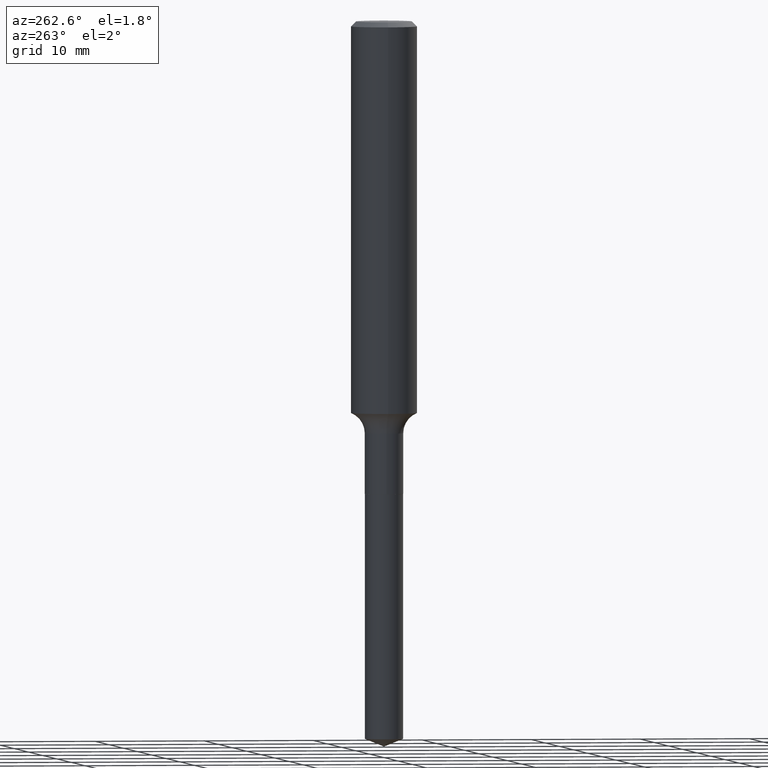
[diagram: clean part render]
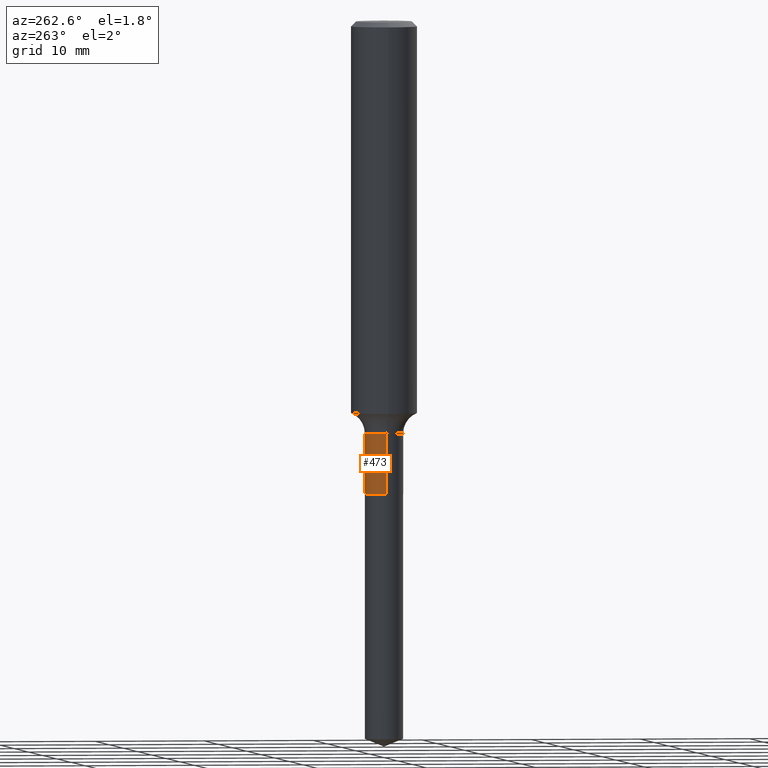
[diagram: same view with one face highlighted and labeled with its STEP entity id]
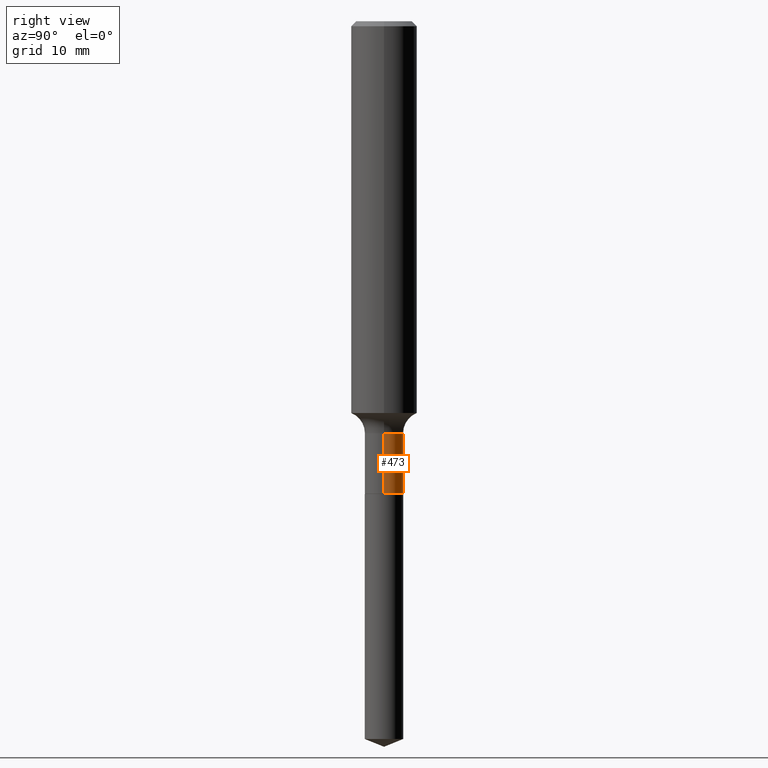
[diagram: same view with one face highlighted and labeled with its STEP entity id]
A machine part, auxiliary view. The second image highlights one B-rep face of the part: STEP entity #473.
A second angle (right view) of the same face is appended — the face is thin or edge-on in the first view.
In plain terms, the highlighted cylindrical surface (edge-blend (fillet) strip) has radius 1.7501 mm, axis along (-0, 0, 1).
Its self-contained STEP definition (entity closure, byte-faithful):
#10 = VERTEX_POINT ( 'NONE', #204 ) ;
#20 = DIRECTION ( 'NONE',  ( 1.000000000000000000, -6.982962677686265922E-15, 4.876176775795934672E-29 ) ) ;
#22 = CIRCLE ( 'NONE', #251, 0.06890000000000000291 ) ;
#40 = CARTESIAN_POINT ( 'NONE',  ( 0.06889999999999997515, -5.632108547687876483E-15, -1.475300000000000056 ) ) ;
#46 = CARTESIAN_POINT ( 'NONE',  ( -0.06890000000000001679, -5.039720477320238409E-15, -1.692000000000000171 ) ) ;
#47 = VERTEX_POINT ( 'NONE', #40 ) ;
#48 = DIRECTION ( 'NONE',  ( 1.000000000000000000, -6.982962677686265922E-15, 0.000000000000000000 ) ) ;
#52 = CYLINDRICAL_SURFACE ( 'NONE', #405, 0.06890000000000000291 ) ;
#82 = DIRECTION ( 'NONE',  ( -2.445468806185136597E-29, 3.491481338843145583E-15, 1.000000000000000000 ) ) ;
#112 = DIRECTION ( 'NONE',  ( -2.445468806185136877E-29, 3.491481338843145188E-15, 1.000000000000000000 ) ) ;
#113 = CIRCLE ( 'NONE', #233, 0.06889999999999997515 ) ;
#168 = DIRECTION ( 'NONE',  ( -2.445468806185136877E-29, 3.491481338843145188E-15, 1.000000000000000000 ) ) ;
#172 = DIRECTION ( 'NONE',  ( 1.000000000000000000, -6.982962677686268288E-15, 0.000000000000000000 ) ) ;
#200 = VERTEX_POINT ( 'NONE', #268 ) ;
#204 = CARTESIAN_POINT ( 'NONE',  ( 0.06890000000000000291, -6.388712553815186107E-15, -1.692000000000000171 ) ) ;
#233 = AXIS2_PLACEMENT_3D ( 'NONE', #279, #245, #172 ) ;
#235 = ORIENTED_EDGE ( 'NONE', *, *, #378, .T. ) ;
#245 = DIRECTION ( 'NONE',  ( -2.445468806185136597E-29, 3.491481338843145583E-15, 1.000000000000000000 ) ) ;
#249 = ORIENTED_EDGE ( 'NONE', *, *, #352, .F. ) ;
#251 = AXIS2_PLACEMENT_3D ( 'NONE', #420, #82, #48 ) ;
#268 = CARTESIAN_POINT ( 'NONE',  ( -0.06889999999999997515, -5.039720477320238409E-15, -1.475300000000000056 ) ) ;
#276 = VERTEX_POINT ( 'NONE', #46 ) ;
#279 = CARTESIAN_POINT ( 'NONE',  ( 3.607800129764931825E-29, -5.150982419195292745E-15, -1.475300000000000056 ) ) ;
#301 = EDGE_CURVE ( 'NONE', #10, #276, #22, .T. ) ;
#327 = VECTOR ( 'NONE', #112, 39.37007874015748143 ) ;
#348 = FACE_OUTER_BOUND ( 'NONE', #395, .T. ) ;
#352 = EDGE_CURVE ( 'NONE', #10, #47, #491, .T. ) ;
#378 = EDGE_CURVE ( 'NONE', #276, #200, #392, .T. ) ;
#392 = LINE ( 'NONE', #427, #487 ) ;
#394 = DIRECTION ( 'NONE',  ( -2.445468806185136597E-29, 3.491481338843145583E-15, 1.000000000000000000 ) ) ;
#395 = EDGE_LOOP ( 'NONE', ( #470, #235, #413, #249 ) ) ;
#405 = AXIS2_PLACEMENT_3D ( 'NONE', #430, #394, #20 ) ;
#413 = ORIENTED_EDGE ( 'NONE', *, *, #464, .F. ) ;
#420 = CARTESIAN_POINT ( 'NONE',  ( 4.137733220065251539E-29, -5.907586425322602368E-15, -1.692000000000000171 ) ) ;
#427 = CARTESIAN_POINT ( 'NONE',  ( -0.06890000000000000291, 4.895639449387090487E-16, -3.389146277185630017E-30 ) ) ;
#430 = CARTESIAN_POINT ( 'NONE',  ( 0.000000000000000000, 0.000000000000000000, 0.000000000000000000 ) ) ;
#451 = CARTESIAN_POINT ( 'NONE',  ( 0.06890000000000000291, -4.811261284925837385E-16, 3.359685798523399268E-30 ) ) ;
#464 = EDGE_CURVE ( 'NONE', #47, #200, #113, .T. ) ;
#470 = ORIENTED_EDGE ( 'NONE', *, *, #301, .T. ) ;
#473 = ADVANCED_FACE ( 'NONE', ( #348 ), #52, .T. ) ;
#487 = VECTOR ( 'NONE', #168, 39.37007874015748143 ) ;
#491 = LINE ( 'NONE', #451, #327 ) ;